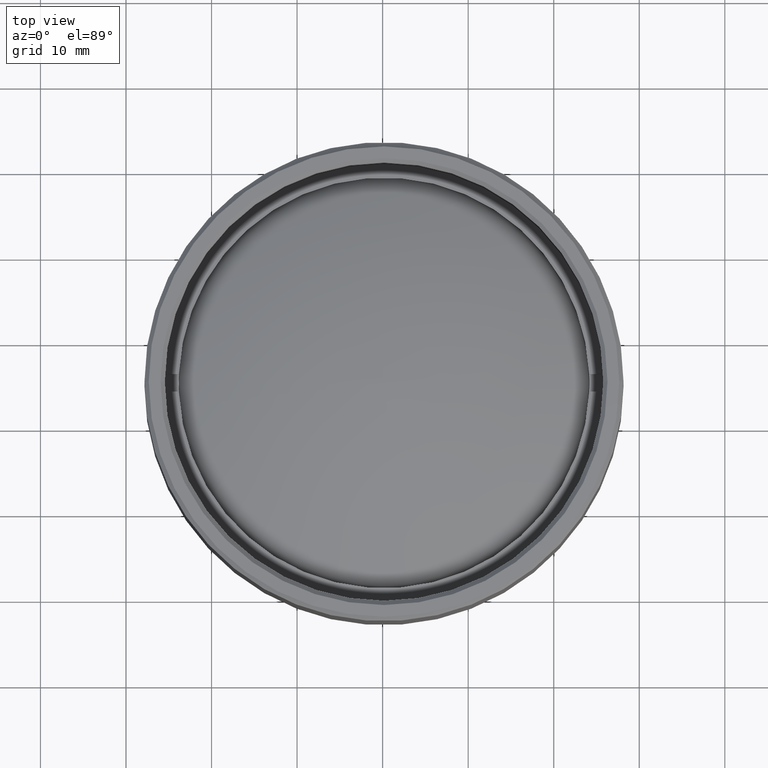
[diagram: clean part render]
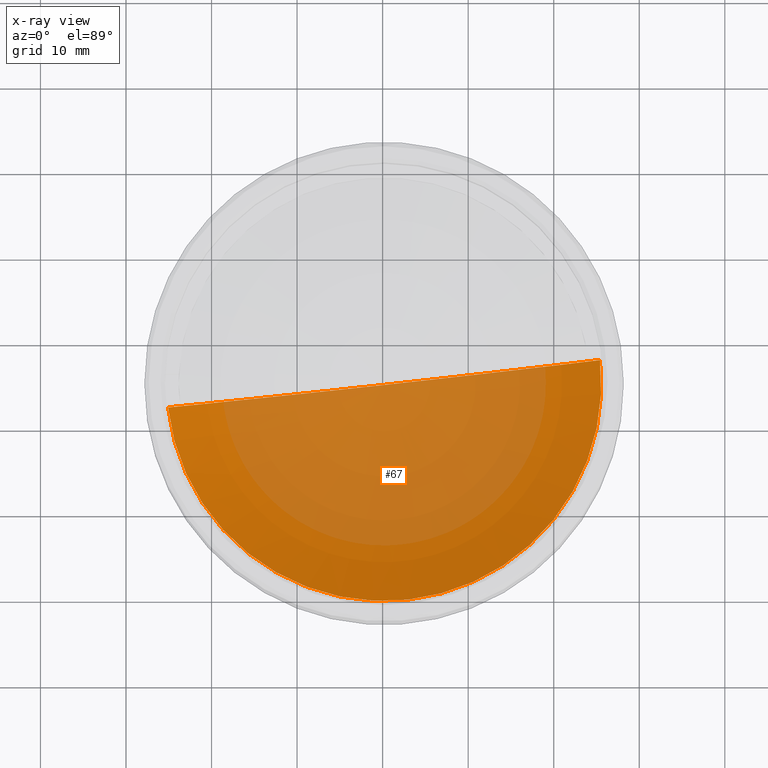
[diagram: x-ray — body ghosted, one internal face saturated and labeled with its STEP entity id]
A machine part, top view, then the same camera in x-ray: the body is ghosted and one INTERNAL B-rep face — a face not visible from any outside direction — is saturated and labeled: STEP entity #67.
In plain terms, the highlighted spherical surface has radius 44.2 mm.
Its self-contained STEP definition (entity closure, byte-faithful):
#24 = DIRECTION ( 'NONE',  ( 0.000000000000000000, 0.000000000000000000, 1.000000000000000000 ) ) ;
#58 = EDGE_LOOP ( 'NONE', ( #1546, #183 ) ) ;
#67 = ADVANCED_FACE ( 'NONE', ( #252 ), #1178, .F. ) ;
#76 = CIRCLE ( 'NONE', #162, 25.39999999999999858 ) ;
#80 = CIRCLE ( 'NONE', #1207, 44.20000000000000284 ) ;
#162 = AXIS2_PLACEMENT_3D ( 'NONE', #705, #1107, #1657 ) ;
#183 = ORIENTED_EDGE ( 'NONE', *, *, #227, .T. ) ;
#227 = EDGE_CURVE ( 'NONE', #644, #1517, #80, .T. ) ;
#252 = FACE_OUTER_BOUND ( 'NONE', #58, .T. ) ;
#434 = EDGE_CURVE ( 'NONE', #1517, #644, #76, .T. ) ;
#644 = VERTEX_POINT ( 'NONE', #1287 ) ;
#650 = CARTESIAN_POINT ( 'NONE',  ( -25.39999999999999858, 0.000000000000000000, -7.972918046516520363 ) ) ;
#705 = CARTESIAN_POINT ( 'NONE',  ( 9.830340220827032177E-16, 0.000000000000000000, -7.972918046516520363 ) ) ;
#928 = DIRECTION ( 'NONE',  ( -1.000000000000000000, 0.000000000000000000, 1.569885498621544728E-16 ) ) ;
#1107 = DIRECTION ( 'NONE',  ( 1.365923996832131856E-16, 0.000000000000000000, 1.000000000000000000 ) ) ;
#1178 = SPHERICAL_SURFACE ( 'NONE', #1248, 44.20000000000000284 ) ;
#1207 = AXIS2_PLACEMENT_3D ( 'NONE', #1490, #1481, #24 ) ;
#1248 = AXIS2_PLACEMENT_3D ( 'NONE', #1316, #1326, #928 ) ;
#1287 = CARTESIAN_POINT ( 'NONE',  ( 25.39999999999999858, -3.110602869834275287E-15, -7.972918046516531021 ) ) ;
#1316 = CARTESIAN_POINT ( 'NONE',  ( 0.000000000000000000, 0.000000000000000000, 28.19999999999999929 ) ) ;
#1326 = DIRECTION ( 'NONE',  ( -1.569885498621544728E-16, -0.000000000000000000, -1.000000000000000000 ) ) ;
#1481 = DIRECTION ( 'NONE',  ( 0.000000000000000000, 1.000000000000000000, 0.000000000000000000 ) ) ;
#1490 = CARTESIAN_POINT ( 'NONE',  ( 0.000000000000000000, 0.000000000000000000, 28.19999999999999929 ) ) ;
#1517 = VERTEX_POINT ( 'NONE', #650 ) ;
#1546 = ORIENTED_EDGE ( 'NONE', *, *, #434, .T. ) ;
#1657 = DIRECTION ( 'NONE',  ( 1.000000000000000000, 0.000000000000000000, -1.365923996832131609E-16 ) ) ;